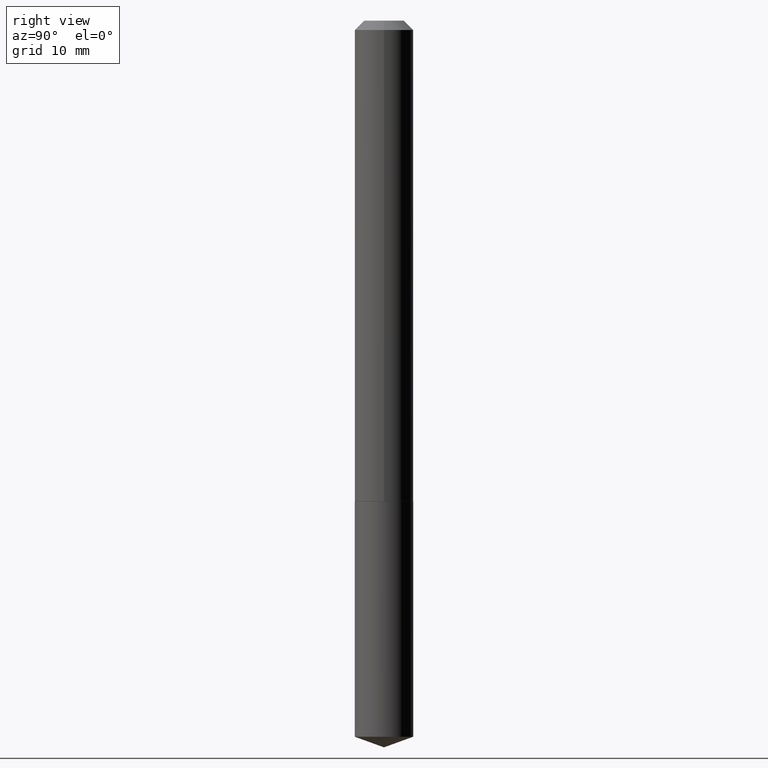
[diagram: clean part render]
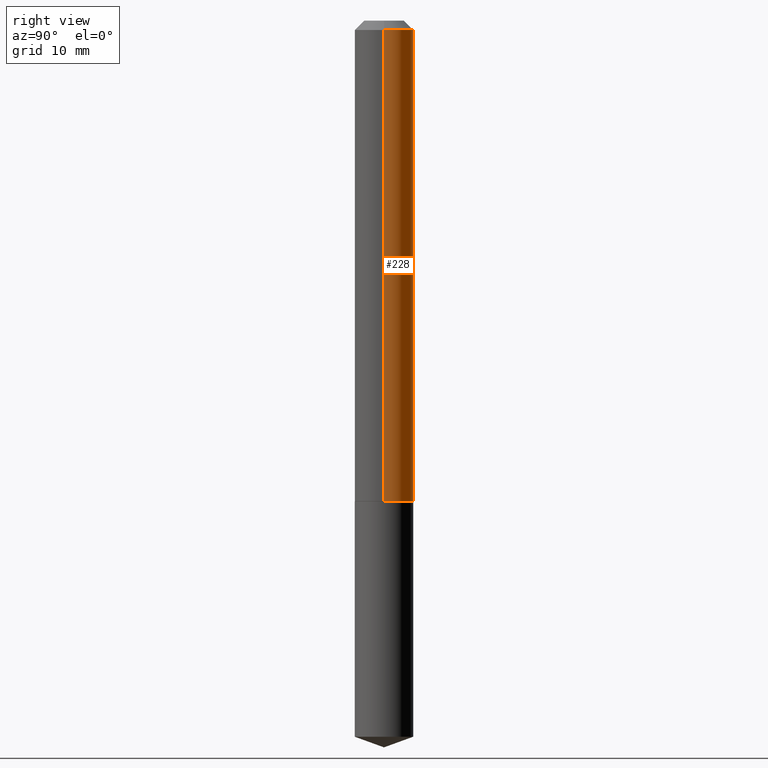
[diagram: same view with one face highlighted and labeled with its STEP entity id]
A machine part, right view. The second image highlights one B-rep face of the part: STEP entity #228.
In plain terms, the highlighted cylindrical surface (edge-blend (fillet) strip) has radius 2.5006 mm, axis along (-0, 0, 1).
Its self-contained STEP definition (entity closure, byte-faithful):
#2 = CARTESIAN_POINT ( 'NONE',  ( 0.09845000000000020401, -6.321676112109399581E-15, -1.613700000000000134 ) ) ;
#6 = ORIENTED_EDGE ( 'NONE', *, *, #126, .F. ) ;
#12 = EDGE_LOOP ( 'NONE', ( #39, #261, #6, #13 ) ) ;
#13 = ORIENTED_EDGE ( 'NONE', *, *, #177, .F. ) ;
#20 = VERTEX_POINT ( 'NONE', #326 ) ;
#21 = VECTOR ( 'NONE', #322, 39.37007874015748143 ) ;
#26 = DIRECTION ( 'NONE',  ( -2.445468806185136597E-29, 3.491481338843145583E-15, 1.000000000000000000 ) ) ;
#36 = VERTEX_POINT ( 'NONE', #2 ) ;
#39 = ORIENTED_EDGE ( 'NONE', *, *, #238, .T. ) ;
#57 = VECTOR ( 'NONE', #232, 39.37007874015748143 ) ;
#75 = LINE ( 'NONE', #197, #21 ) ;
#88 = AXIS2_PLACEMENT_3D ( 'NONE', #212, #387, #156 ) ;
#90 = DIRECTION ( 'NONE',  ( -2.445468806185136597E-29, 3.491481338843145583E-15, 1.000000000000000000 ) ) ;
#119 = CARTESIAN_POINT ( 'NONE',  ( -0.09845000000000010687, 6.995293233558193923E-16, -4.842691596355960348E-30 ) ) ;
#126 = EDGE_CURVE ( 'NONE', #20, #348, #293, .T. ) ;
#128 = CARTESIAN_POINT ( 'NONE',  ( -0.09845000000000020401, -4.934674113135364966E-15, -1.613700000000000134 ) ) ;
#131 = DIRECTION ( 'NONE',  ( 1.000000000000000000, -6.982962677686266711E-15, 0.000000000000000000 ) ) ;
#138 = AXIS2_PLACEMENT_3D ( 'NONE', #365, #26, #131 ) ;
#156 = DIRECTION ( 'NONE',  ( 1.000000000000000000, -6.982962677686267499E-15, 4.876176775795935793E-29 ) ) ;
#177 = EDGE_CURVE ( 'NONE', #36, #20, #75, .T. ) ;
#181 = FACE_OUTER_BOUND ( 'NONE', #12, .T. ) ;
#197 = CARTESIAN_POINT ( 'NONE',  ( 0.09845000000000010687, -6.874726756182137434E-16, 4.800596035771104119E-30 ) ) ;
#212 = CARTESIAN_POINT ( 'NONE',  ( 0.000000000000000000, 0.000000000000000000, 0.000000000000000000 ) ) ;
#228 = ADVANCED_FACE ( 'NONE', ( #181 ), #241, .T. ) ;
#232 = DIRECTION ( 'NONE',  ( -2.445468806185136877E-29, 3.491481338843145188E-15, 1.000000000000000000 ) ) ;
#238 = EDGE_CURVE ( 'NONE', #36, #287, #308, .T. ) ;
#241 = CYLINDRICAL_SURFACE ( 'NONE', #88, 0.09845000000000010687 ) ;
#260 = EDGE_CURVE ( 'NONE', #287, #348, #262, .T. ) ;
#261 = ORIENTED_EDGE ( 'NONE', *, *, #260, .T. ) ;
#262 = LINE ( 'NONE', #119, #57 ) ;
#287 = VERTEX_POINT ( 'NONE', #128 ) ;
#293 = CIRCLE ( 'NONE', #138, 0.09845000000000000973 ) ;
#308 = CIRCLE ( 'NONE', #347, 0.09845000000000020401 ) ;
#322 = DIRECTION ( 'NONE',  ( -2.445468806185136877E-29, 3.491481338843145188E-15, 1.000000000000000000 ) ) ;
#323 = CARTESIAN_POINT ( 'NONE',  ( -0.09845000000000000973, -2.172126790809196006E-15, -0.03125000000000021511 ) ) ;
#326 = CARTESIAN_POINT ( 'NONE',  ( 0.09845000000000000973, -7.965814674570621538E-16, -0.03125000000000021511 ) ) ;
#330 = CARTESIAN_POINT ( 'NONE',  ( 3.946253012540955150E-29, -5.634203436491184654E-15, -1.613700000000000134 ) ) ;
#332 = DIRECTION ( 'NONE',  ( 1.000000000000000000, -6.982962677686269866E-15, 0.000000000000000000 ) ) ;
#347 = AXIS2_PLACEMENT_3D ( 'NONE', #330, #90, #332 ) ;
#348 = VERTEX_POINT ( 'NONE', #323 ) ;
#365 = CARTESIAN_POINT ( 'NONE',  ( 7.642090019328604414E-31, -1.091087918388490513E-16, -0.03125000000000021511 ) ) ;
#387 = DIRECTION ( 'NONE',  ( -2.445468806185136597E-29, 3.491481338843145583E-15, 1.000000000000000000 ) ) ;